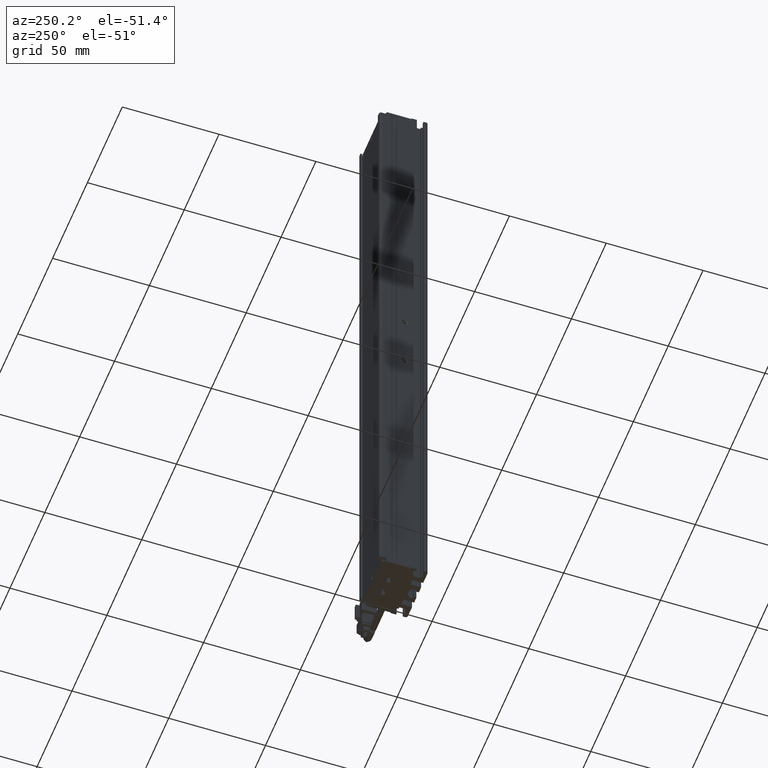
[diagram: clean part render]
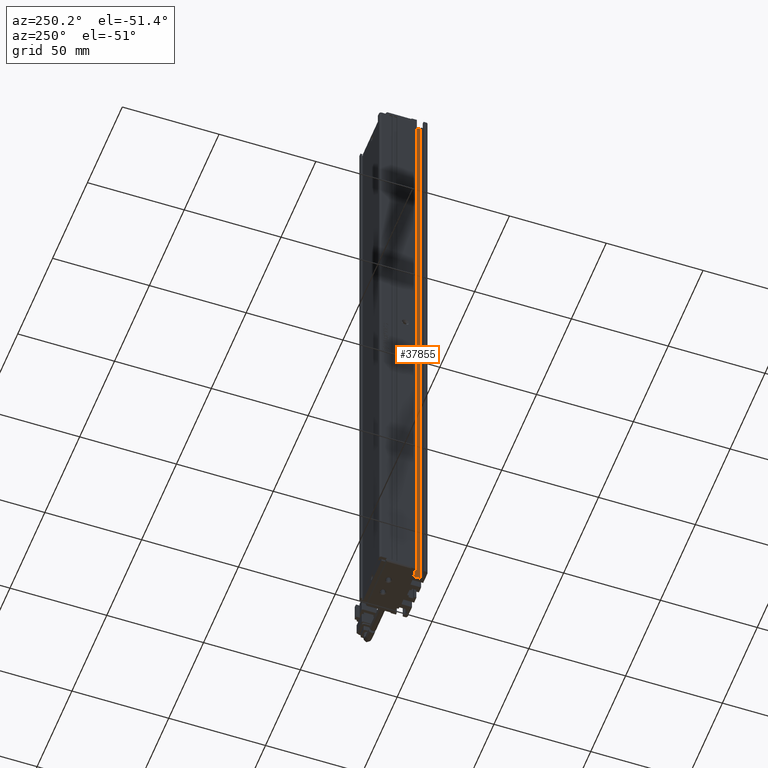
[diagram: same view with one face highlighted and labeled with its STEP entity id]
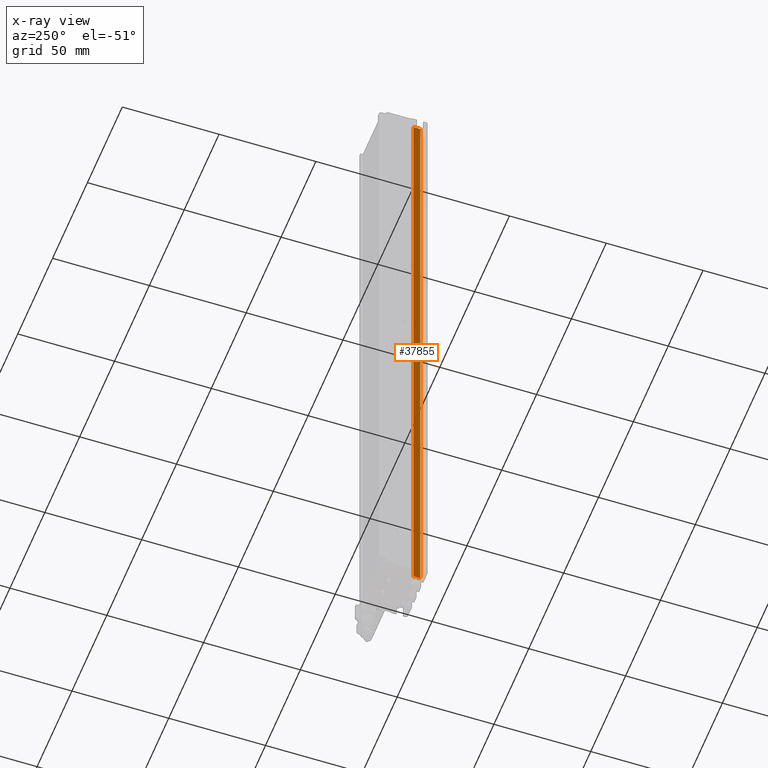
[diagram: x-ray of the same camera — body ghosted, the highlighted face saturated]
A machine part, auxiliary view. The second image highlights one B-rep face of the part: STEP entity #37855.
The next image is the same camera in x-ray: the body ghosted, the highlighted face saturated — about 0% of this face is hidden behind the body in this view.
In plain terms, the highlighted planar face has unit normal (1, 0, -0).
Its self-contained STEP definition (entity closure, byte-faithful):
#619 = DIRECTION ( 'NONE',  ( -0.0000000000000000000, 0.0000000000000000000, -1.000000000000000000 ) ) ;
#1902 = AXIS2_PLACEMENT_3D ( 'NONE', #63085, #31877, #619 ) ;
#1943 = VERTEX_POINT ( 'NONE', #15687 ) ;
#6609 = CARTESIAN_POINT ( 'NONE',  ( 30.72537974683543300, 7.083797468354437600, -290.0000000000000600 ) ) ;
#7392 = LINE ( 'NONE', #18509, #61173 ) ;
#10950 = PLANE ( 'NONE',  #1902 ) ;
#12743 = CARTESIAN_POINT ( 'NONE',  ( 30.72537974683543300, 16.49594479660387200, 60.00000000000001400 ) ) ;
#15687 = CARTESIAN_POINT ( 'NONE',  ( 30.72537974683543300, 12.99594479660387100, 60.00000000000001400 ) ) ;
#16062 = DIRECTION ( 'NONE',  ( -0.0000000000000000000, -1.000000000000000000, 0.0000000000000000000 ) ) ;
#18509 = CARTESIAN_POINT ( 'NONE',  ( 30.72537974683543300, 12.99594479660387100, 60.00000000000001400 ) ) ;
#21587 = ORIENTED_EDGE ( 'NONE', *, *, #26999, .F. ) ;
#23071 = EDGE_CURVE ( 'NONE', #1943, #60737, #7392, .T. ) ;
#23677 = EDGE_CURVE ( 'NONE', #28859, #38848, #39927, .T. ) ;
#23724 = DIRECTION ( 'NONE',  ( -0.0000000000000000000, 0.0000000000000000000, -1.000000000000000000 ) ) ;
#24489 = CARTESIAN_POINT ( 'NONE',  ( 30.72537974683543300, 16.49594479660387200, 60.00000000000001400 ) ) ;
#26500 = CARTESIAN_POINT ( 'NONE',  ( 30.72537974683543300, 16.49594479660387200, -290.0000000000000600 ) ) ;
#26999 = EDGE_CURVE ( 'NONE', #38848, #1943, #46925, .T. ) ;
#28859 = VERTEX_POINT ( 'NONE', #26500 ) ;
#29436 = LINE ( 'NONE', #6609, #41710 ) ;
#29799 = VECTOR ( 'NONE', #16062, 1000.000000000000000 ) ;
#31877 = DIRECTION ( 'NONE',  ( 1.000000000000000000, 0.0000000000000000000, -0.0000000000000000000 ) ) ;
#34952 = EDGE_CURVE ( 'NONE', #28859, #60737, #29436, .T. ) ;
#35515 = EDGE_LOOP ( 'NONE', ( #59218, #21587, #54307, #50963 ) ) ;
#37855 = ADVANCED_FACE ( 'NONE', ( #67048 ), #10950, .F. ) ;
#38848 = VERTEX_POINT ( 'NONE', #24489 ) ;
#39927 = LINE ( 'NONE', #12743, #65901 ) ;
#41710 = VECTOR ( 'NONE', #48335, 1000.000000000000000 ) ;
#43937 = DIRECTION ( 'NONE',  ( 0.0000000000000000000, -0.0000000000000000000, 1.000000000000000000 ) ) ;
#46414 = CARTESIAN_POINT ( 'NONE',  ( 30.72537974683543300, 12.99594479660387100, -290.0000000000000600 ) ) ;
#46925 = LINE ( 'NONE', #47214, #29799 ) ;
#47214 = CARTESIAN_POINT ( 'NONE',  ( 30.72537974683543300, 7.083797468354437600, 60.00000000000001400 ) ) ;
#48335 = DIRECTION ( 'NONE',  ( -0.0000000000000000000, -1.000000000000000000, 0.0000000000000000000 ) ) ;
#50963 = ORIENTED_EDGE ( 'NONE', *, *, #34952, .T. ) ;
#54307 = ORIENTED_EDGE ( 'NONE', *, *, #23677, .F. ) ;
#59218 = ORIENTED_EDGE ( 'NONE', *, *, #23071, .F. ) ;
#60737 = VERTEX_POINT ( 'NONE', #46414 ) ;
#61173 = VECTOR ( 'NONE', #23724, 1000.000000000000000 ) ;
#63085 = CARTESIAN_POINT ( 'NONE',  ( 30.72537974683543300, 7.083797468354437600, 60.00000000000001400 ) ) ;
#65901 = VECTOR ( 'NONE', #43937, 1000.000000000000000 ) ;
#67048 = FACE_OUTER_BOUND ( 'NONE', #35515, .T. ) ;